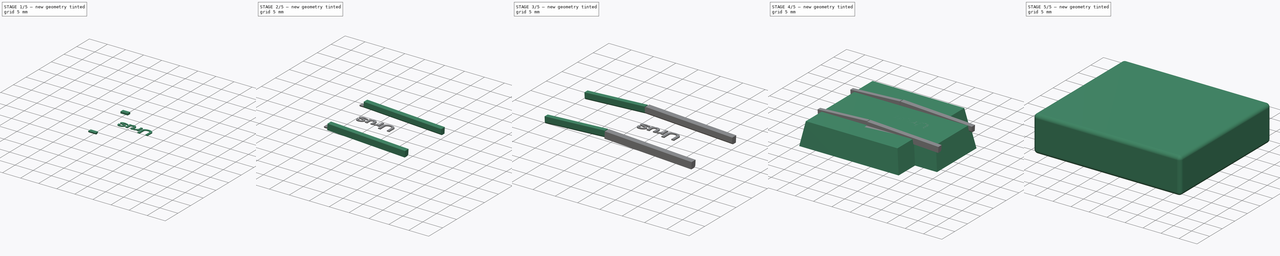
[diagram: build sequence overview — one tinted view per stage of 5, left to right]
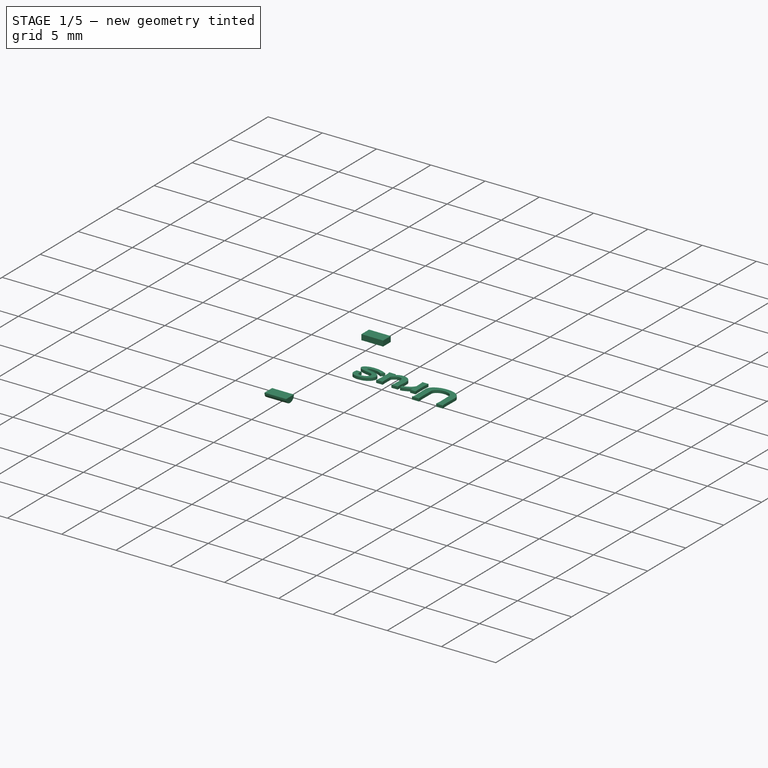
[diagram: stage 1 of 5 — iso view after this stage's code; geometry added in this stage tinted green]
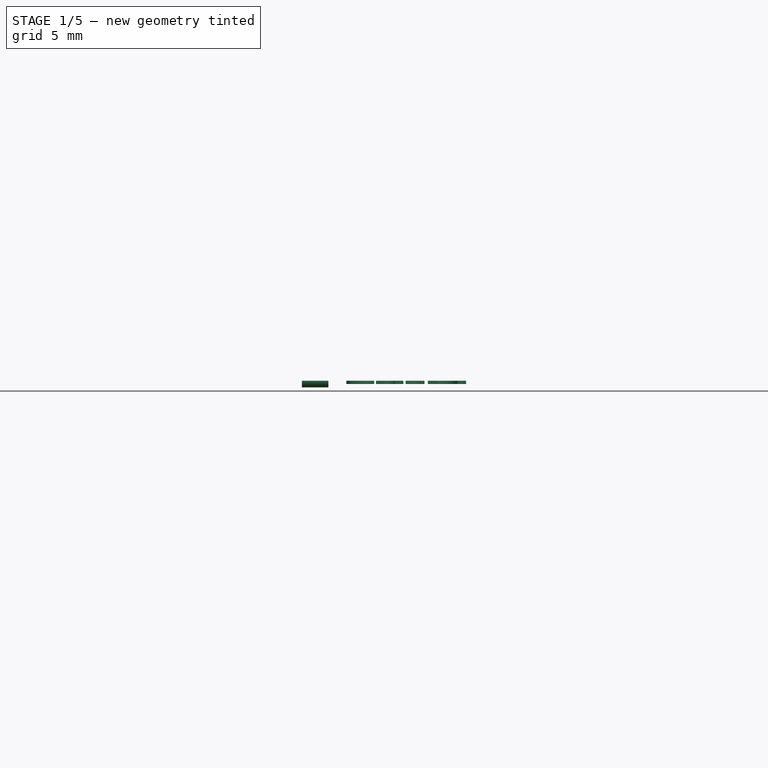
[diagram: stage 1 of 5 — front view after this stage's code; geometry added in this stage tinted green]
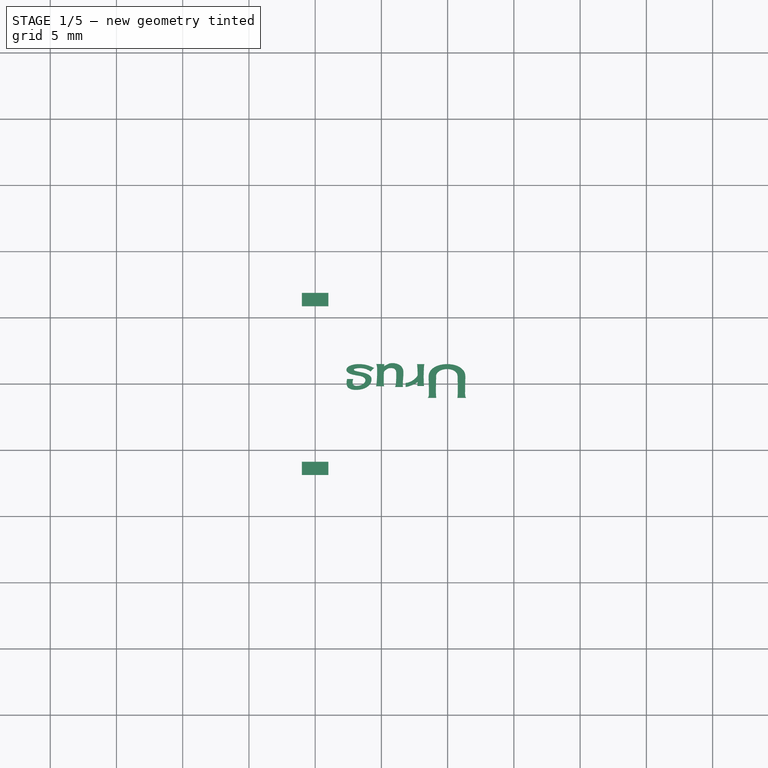
[diagram: stage 1 of 5 — top view after this stage's code; geometry added in this stage tinted green]
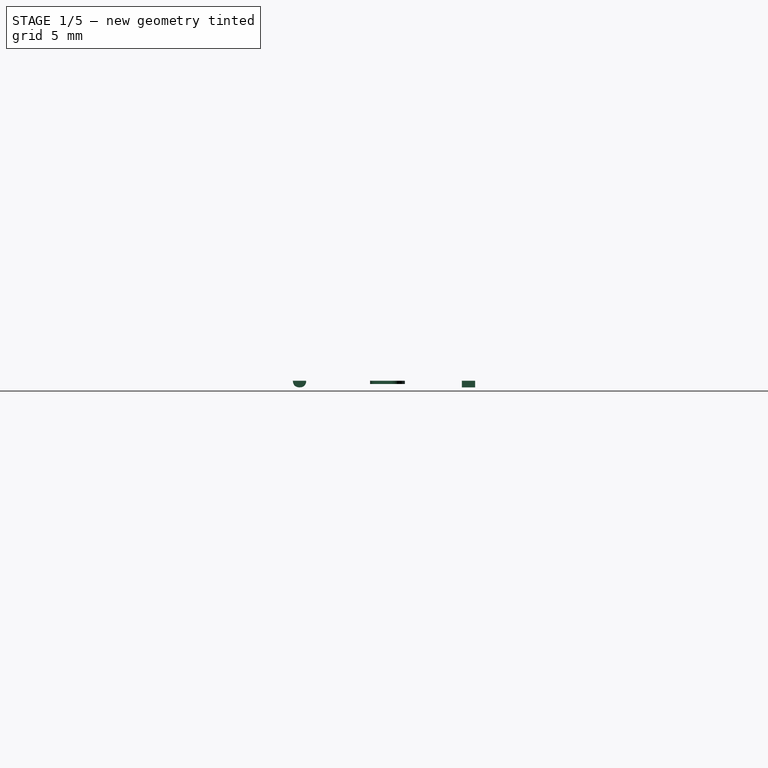
[diagram: stage 1 of 5 — right view after this stage's code; geometry added in this stage tinted green]
FCSTD DOCUMENT  (FreeCAD 0.19R24276 (Git))
Label: Mold_negative5
License: All rights reserved
LicenseURL: http://en.wikipedia.org/wiki/All_rights_reserved
objects: Part::Box×7, Part::Fillet×7, Part::Extrusion×4, Sketcher::SketchObject×3, Part::MultiFuse×2, Part::Cut×2, Spreadsheet::Sheet×1, Part::Part2DObjectPython×1
note: 26 computed .brp shape members not serialized (recipe doc carries the construction recipe); baked Part::Feature solids carry a one-line shape summary decoded from their .brp

FEATURE [Part::Box] Box005  label="Cube005"
  AttacherType = Attacher::AttachEngine3D
  Height = 0.5
  Length = 2
  Placement = pos=(-1,-6.875,-0.5) rot=(0,0.707107,0.707107;0rad)
  Width = 1
  expr: .Placement.Base.y = -<<data>>.left_width / 2 - 0.25mm
FEATURE [Part::Box] Box006  label="Cube006"
  AttacherType = Attacher::AttachEngine3D
  Height = 0.5
  Length = 2
  Placement = pos=(-1,5.875,-0.5) rot=(0,0,1;0rad)
  Width = 1
  expr: .Placement.Base.y = <<data>>.left_width / 2 - 0.75mm
FEATURE [Part::Fillet] Fillet009
  Base = -> Box005
  Edges = 2 edges r=0.45: [Edge9,Edge11]
FEATURE [Part::Part2DObjectPython] ShapeString  # Draft 2D object (typed FeaturePython)
  AttacherType1 = Attacher::AttachEnginePlane
  FontFile = <userpath>/Documents/git/KiCad/FreeCad/CherryCreamSoda-Regular.ttf
  MapMode = 5
  MapMode1 = -1
  MapPathParameter1 = -3
  MapReversed1 = false
  Placement = pos=(0,0,0) rot=(0,0,1;3.14159rad)
  Size = 1.5
  String = Urus
  Tracking = 0
FEATURE [Part::Extrusion] Extrude005
  Base = -> ShapeString
  Dir = (0,0,-0.25)
  DirMode = 0
  FaceMakerClass = Part::FaceMakerExtrusion
  LengthFwd = 0
  LengthRev = 0
  Placement = pos=(11.5,1.5,0) rot=(0,0,-1;0rad)
  Solid = false
  Symmetric = false
  expr: .Placement.Base.x = <<data>>.length / 2 - 1mm
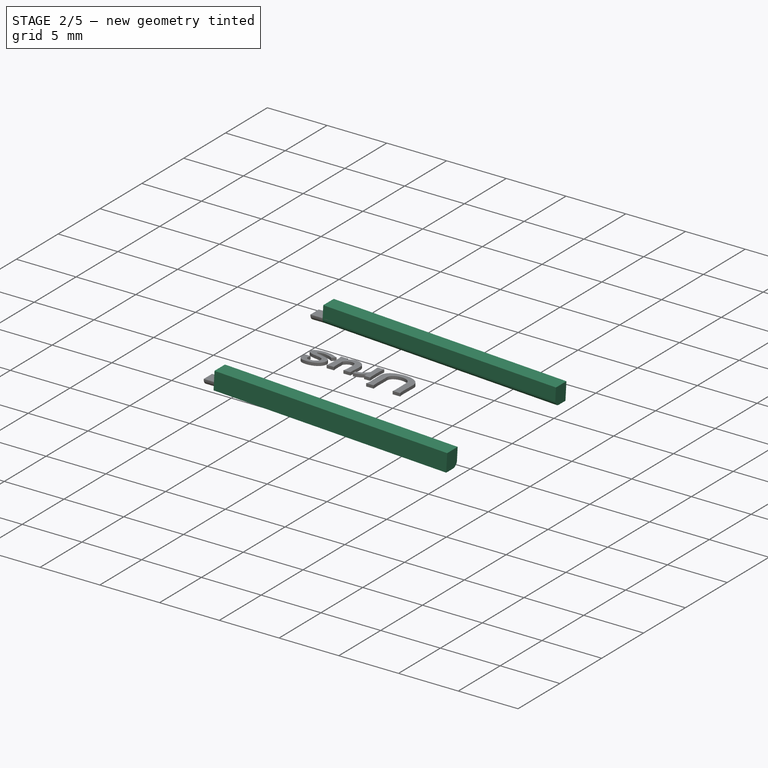
[diagram: stage 2 of 5 — iso view after this stage's code; geometry added in this stage tinted green]
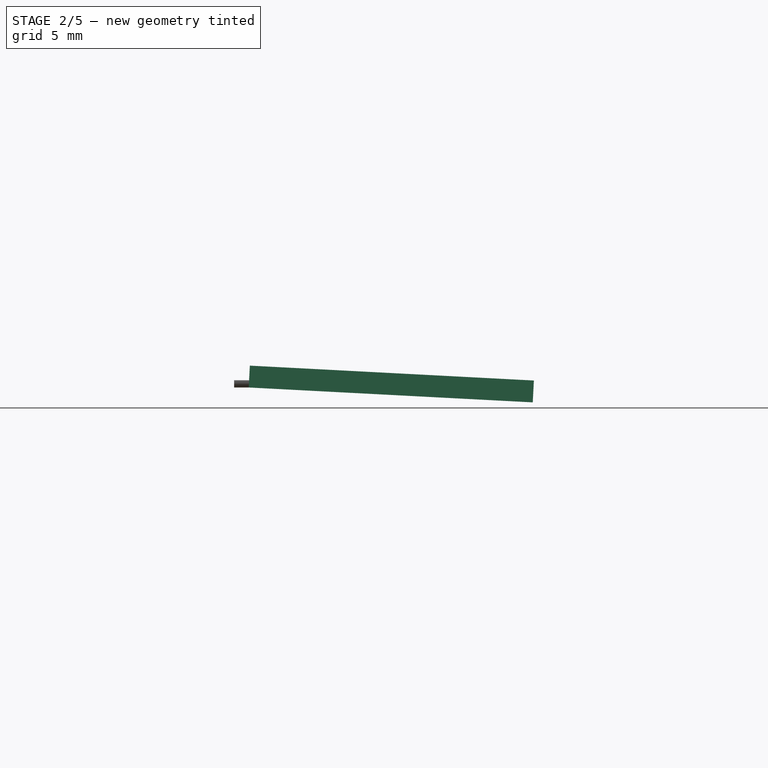
[diagram: stage 2 of 5 — front view after this stage's code; geometry added in this stage tinted green]
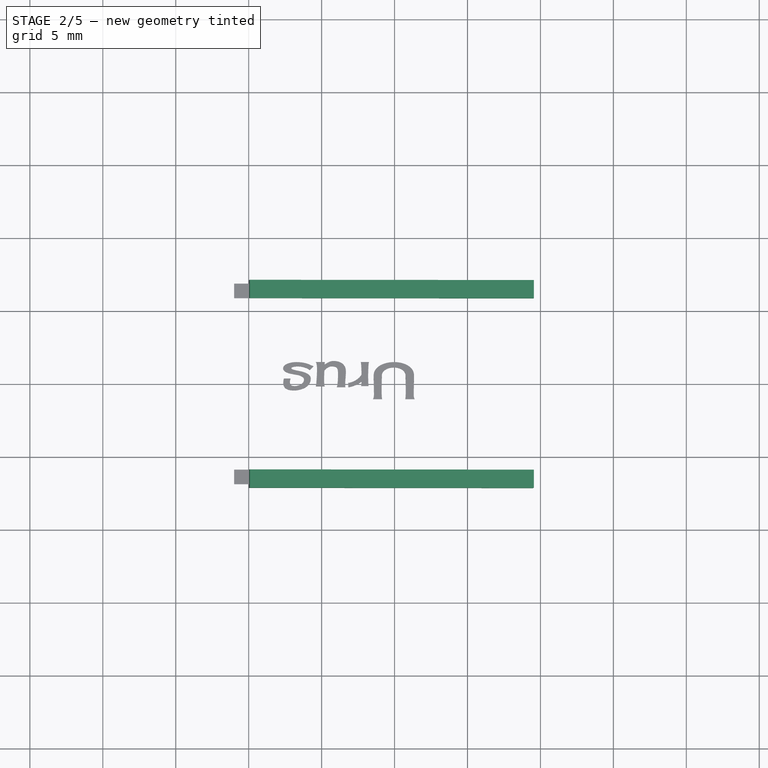
[diagram: stage 2 of 5 — top view after this stage's code; geometry added in this stage tinted green]
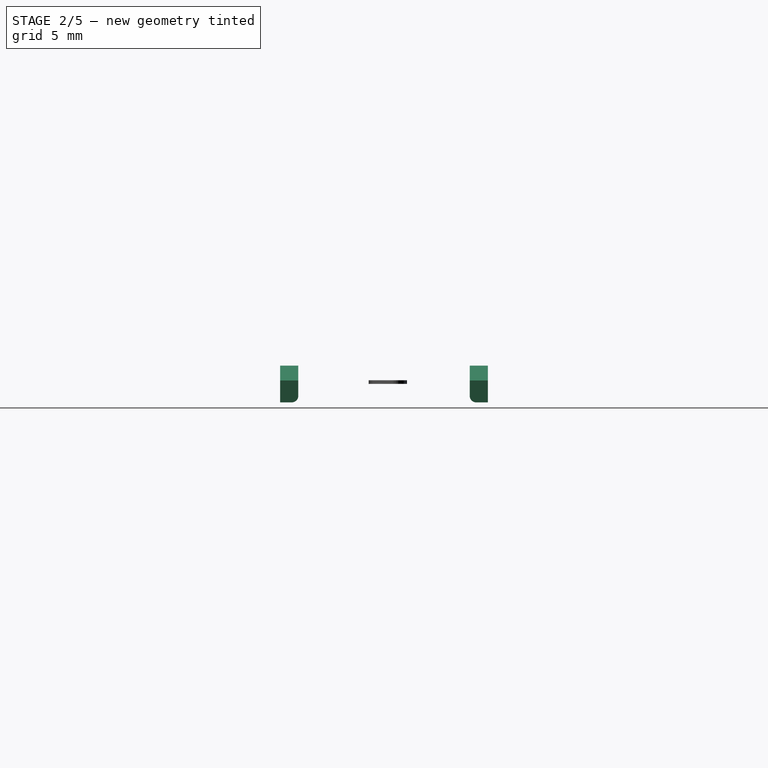
[diagram: stage 2 of 5 — right view after this stage's code; geometry added in this stage tinted green]
FEATURE [Part::Box] Box001  label="L_L"
  AttacherType = Attacher::AttachEngine3D
  Height = 1.5
  Length = 19.5
  Placement = pos=(0,5.875,-0.5) rot=(0,1,0;0.05236rad)
  Width = 1.25
  expr: Length = <<data>>.length / 2 + <<data>>.left_length + 1mm
  expr: .Placement.Base.y = <<data>>.left_width / 2 - 0.75mm
  expr: Height = <<data>>.channel_depth
FEATURE [Part::Box] Box002  label="L_U"
  AttacherType = Attacher::AttachEngine3D
  Height = 1.5
  Length = 19.5
  Placement = pos=(0,-7.125,-0.5) rot=(0,1,0;0.05236rad)
  Width = 1.25
  expr: Length = <<data>>.length / 2 + <<data>>.left_length + 1mm
  expr: .Placement.Base.y = -<<data>>.left_width / 2 - 0.5mm
  expr: Height = <<data>>.channel_depth
FEATURE [Part::Fillet] Fillet006
  Base = -> Box001
  Edges = 1 edges r=0.45: [Edge9]
FEATURE [Part::Fillet] Fillet007
  Base = -> Box002
  Edges = 1 edges r=0.45: [Edge11]
FEATURE [Part::Fillet] Fillet008
  Base = -> Box006
  Edges = 2 edges r=0.45: [Edge9,Edge11]
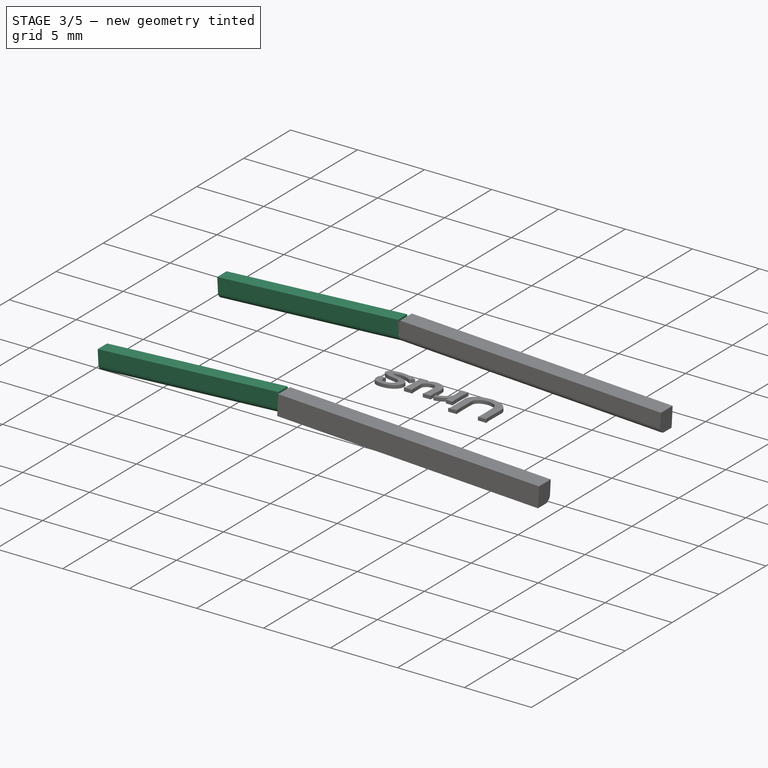
[diagram: stage 3 of 5 — iso view after this stage's code; geometry added in this stage tinted green]
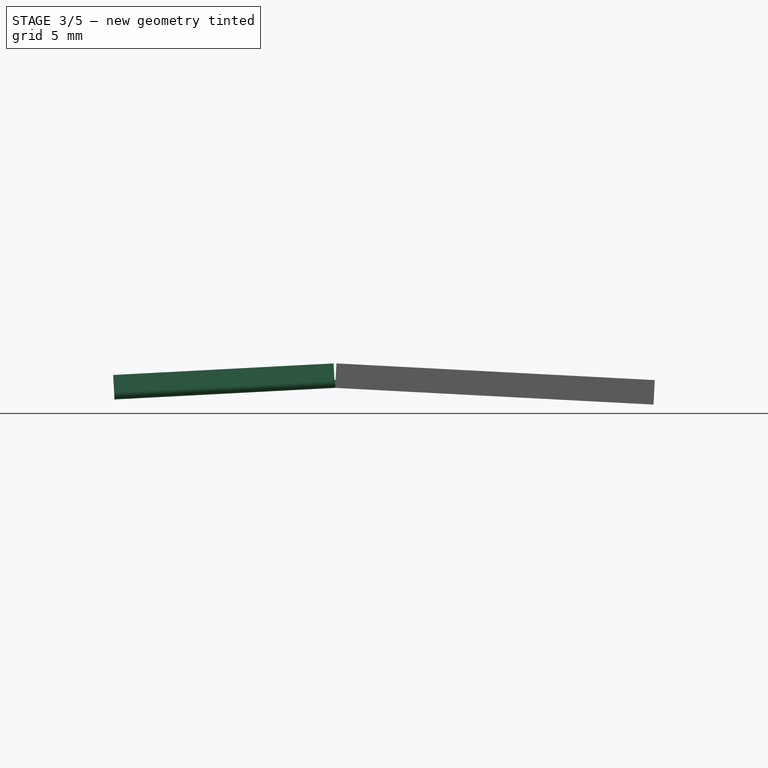
[diagram: stage 3 of 5 — front view after this stage's code; geometry added in this stage tinted green]
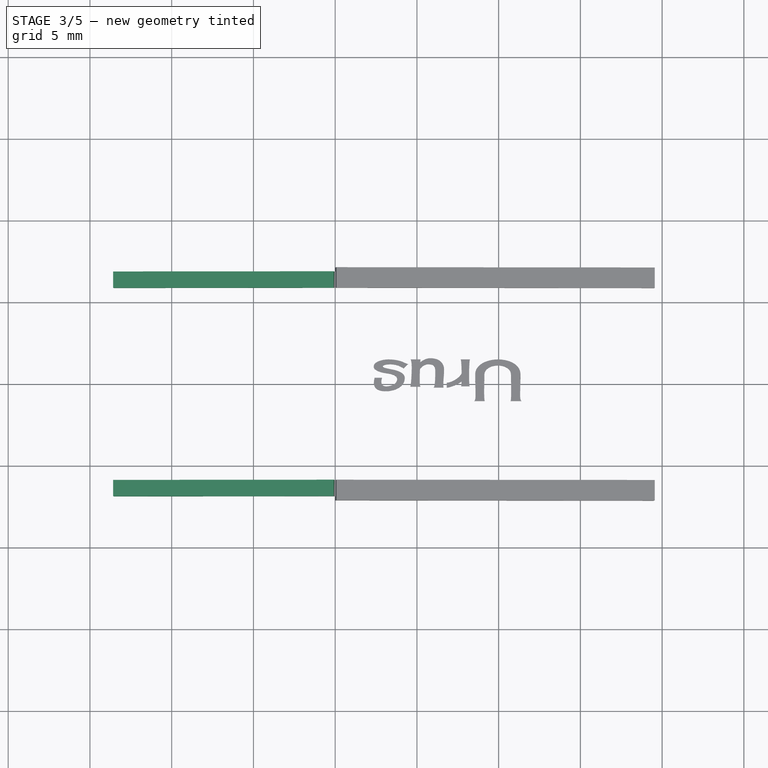
[diagram: stage 3 of 5 — top view after this stage's code; geometry added in this stage tinted green]
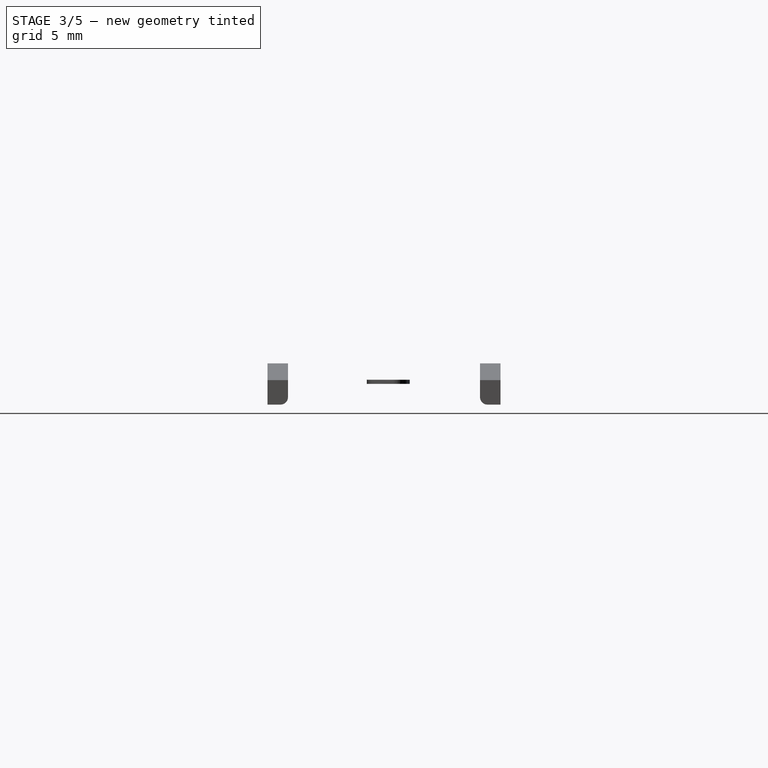
[diagram: stage 3 of 5 — right view after this stage's code; geometry added in this stage tinted green]
FEATURE [Part::Box] Box003  label="R_U"
  AttacherType = Attacher::AttachEngine3D
  Height = 1.5
  Length = 13.5
  Placement = pos=(-13.5,-6.875,-1.20654) rot=(0,-1,0;0.05236rad)
  Width = 1
  expr: .Placement.Base.z = -(<<data>>.length / 2 + <<data>>.right_length + 1mm) * sin(3) - 0.5mm
  expr: Length = <<data>>.length / 2 + <<data>>.right_length + 1mm
  expr: .Placement.Base.y = -<<data>>.left_width / 2 - 0.25mm
  expr: .Placement.Base.x = -<<data>>.length / 2 + <<data>>.right_length - 1mm
  expr: Height = <<data>>.channel_depth
FEATURE [Part::Box] Box004  label="R_L"
  AttacherType = Attacher::AttachEngine3D
  Height = 1.5
  Length = 13.5
  Placement = pos=(-13.5,5.875,-1.20654) rot=(0,-1,0;0.05236rad)
  Width = 1
  expr: .Placement.Base.z = -(<<data>>.length / 2 + <<data>>.right_length + 1mm) * sin(3) - 0.5mm
  expr: Length = <<data>>.length / 2 + <<data>>.right_length + 1mm
  expr: .Placement.Base.y = <<data>>.left_width / 2 - 0.75mm
  expr: .Placement.Base.x = -<<data>>.length / 2 + <<data>>.right_length - 1mm
  expr: Height = <<data>>.channel_depth
FEATURE [Part::Fillet] Fillet004
  Base = -> Box004
  Edges = 2 edges r=0.45: [Edge9,Edge11]
FEATURE [Part::Fillet] Fillet005
  Base = -> Box003
  Edges = 2 edges r=0.45: [Edge9,Edge11]
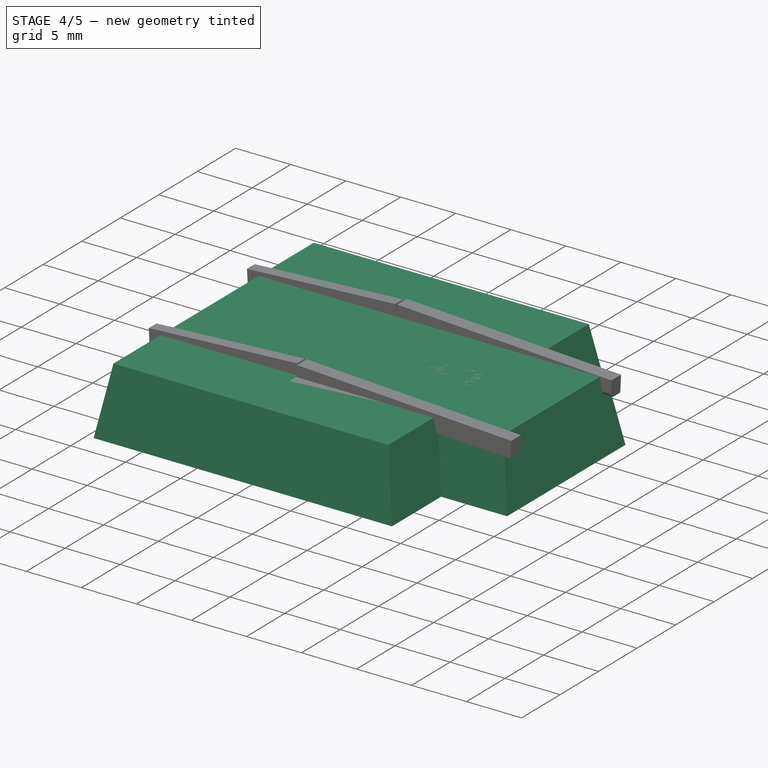
[diagram: stage 4 of 5 — iso view after this stage's code; geometry added in this stage tinted green]
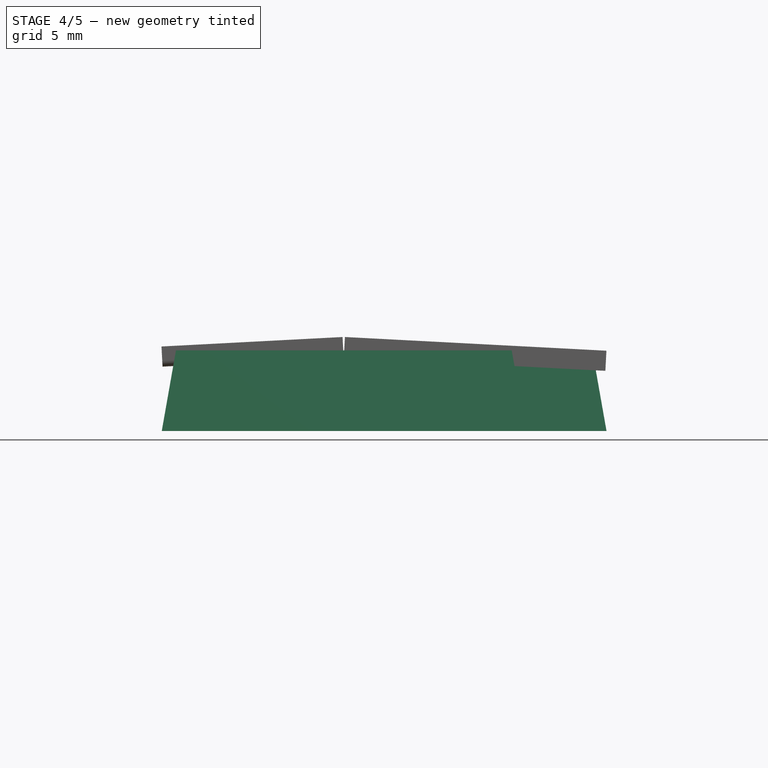
[diagram: stage 4 of 5 — front view after this stage's code; geometry added in this stage tinted green]
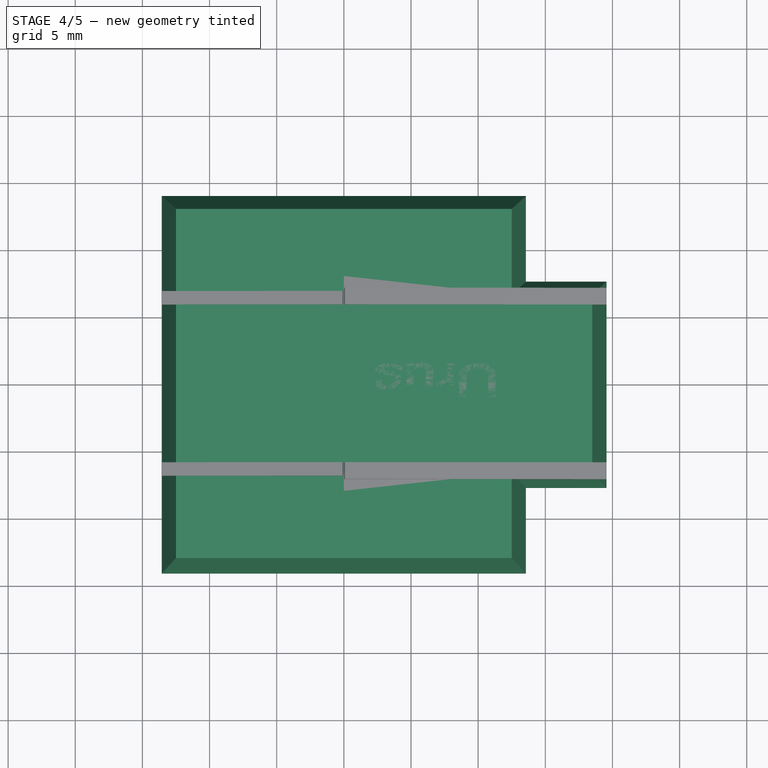
[diagram: stage 4 of 5 — top view after this stage's code; geometry added in this stage tinted green]
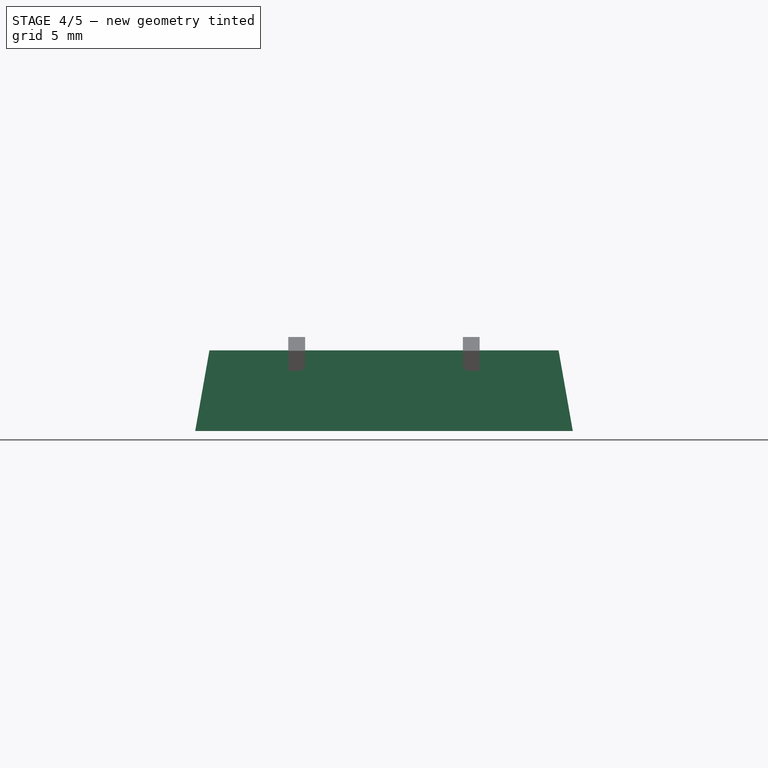
[diagram: stage 4 of 5 — right view after this stage's code; geometry added in this stage tinted green]
FEATURE [Sketcher::SketchObject] Sketch
  FullyConstrained = true
  MapMode = 5
  expr: Constraints[6] = Spreadsheet.length
  expr: Constraints[7] = Spreadsheet.width
  sketch-geometry (4):
    g0: LineSegment StartX=-12.5 StartY=13 StartZ=0 EndX=12.5 EndY=13 EndZ=0
    g1: LineSegment StartX=12.5 StartY=13 StartZ=0 EndX=12.5 EndY=-13 EndZ=0
    g2: LineSegment StartX=12.5 StartY=-13 StartZ=0 EndX=-12.5 EndY=-13 EndZ=0
    g3: LineSegment StartX=-12.5 StartY=-13 StartZ=0 EndX=-12.5 EndY=13 EndZ=0
  constraints (10):
    c: Coincident(g0,g1)
    c: Coincident(g1,g2)
    c: Coincident(g2,g3)
    c: Coincident(g3,g0)
    c: Horizontal(g2)
    c: Vertical(g1)
    c: DistanceX(g0,g0) = 25
    c: DistanceY(g2,g0) = 26
    c: Symmetric(g0,g0,g-2)
    c: Symmetric(g0,g2,g-1)
FEATURE [Part::Extrusion] Extrude  label="MainBody"
  Base = -> Sketch
  Dir = (0,0,-6)
  DirMode = 0
  FaceMakerClass = Part::FaceMakerExtrusion
  LengthFwd = 0
  LengthRev = 0
  Solid = true
  Symmetric = false
  TaperAngle = 10
  expr: .Dir.z = -Spreadsheet.height
  expr: TaperAngle = Spreadsheet.taper
FEATURE [Sketcher::SketchObject] Sketch001
  FullyConstrained = true
  MapMode = 5
  expr: Constraints[7] = Spreadsheet.right_width
  expr: Constraints[10] = Spreadsheet.right_length + Spreadsheet.length / 2
  sketch-geometry (4):
    g0: LineSegment StartX=-12.5 StartY=8 StartZ=0 EndX=0 EndY=8 EndZ=0
    g1: LineSegment StartX=0 StartY=8 StartZ=0 EndX=0 EndY=-8 EndZ=0
    g2: LineSegment StartX=0 StartY=-8 StartZ=0 EndX=-12.5 EndY=-8 EndZ=0
    g3: LineSegment StartX=-12.5 StartY=-8 StartZ=0 EndX=-12.5 EndY=8 EndZ=0
  constraints (11):
    c: Coincident(g0,g1)
    c: Coincident(g1,g2)
    c: Coincident(g2,g3)
    c: Coincident(g3,g0)
    c: Horizontal(g0)
    c: Horizontal(g2)
    c: Vertical(g1)
    c: DistanceY(g2,g0) = 16
    c: Symmetric(g2,g0,g-1)
    c: DistanceX(g0,g-1) = 0
    c: DistanceX(g2,g1) = 12.5
FEATURE [Part::Extrusion] Extrude001  label="RightExtension"
  Base = -> Sketch001
  Dir = (0,0,-6)
  DirMode = 0
  FaceMakerClass = Part::FaceMakerExtrusion
  LengthFwd = 0
  LengthRev = 0
  Solid = true
  Symmetric = false
  TaperAngle = 10
  expr: .Dir.z = -Spreadsheet.height
  expr: TaperAngle = Spreadsheet.taper
FEATURE [Sketcher::SketchObject] Sketch002
  FullyConstrained = true
  MapMode = 5
  expr: Constraints[9] = Spreadsheet.left_width
  expr: Constraints[10] = Spreadsheet.left_length + Spreadsheet.length / 2
  sketch-geometry (4):
    g0: LineSegment StartX=0 StartY=6.625 StartZ=0 EndX=18.5 EndY=6.625 EndZ=0
    g1: LineSegment StartX=18.5 StartY=6.625 StartZ=0 EndX=18.5 EndY=-6.625 EndZ=0
    g2: LineSegment StartX=18.5 StartY=-6.625 StartZ=0 EndX=0 EndY=-6.625 EndZ=0
    g3: LineSegment StartX=0 StartY=-6.625 StartZ=0 EndX=0 EndY=6.625 EndZ=0
  constraints (11):
    c: Coincident(g0,g1)
    c: Coincident(g1,g2)
    c: Coincident(g2,g3)
    c: Coincident(g3,g0)
    c: Horizontal(g0)
    c: Horizontal(g2)
    c: Vertical(g3)
    c: PointOnObject(g0,g-2)
    c: Symmetric(g0,g1,g-1)
    c: DistanceY(g1,g0) = 13.25
    c: DistanceX(g0,g0) = 18.5
FEATURE [Part::Extrusion] Extrude004  label="LeftExtension"
  Base = -> Sketch002
  Dir = (0,0,-6)
  DirMode = 0
  FaceMakerClass = Part::FaceMakerExtrusion
  LengthFwd = 0
  LengthRev = 0
  Solid = true
  Symmetric = false
  TaperAngle = 10
  expr: .Dir.z = -Spreadsheet.height
  expr: TaperAngle = Spreadsheet.taper
FEATURE [Part::MultiFuse] Fusion  label="MainBody001"
  Shapes = -> [Extrude004,Extrude001,Extrude]
FEATURE [Part::MultiFuse] Fusion001  label="RailsAndText"
  Shapes = -> [Extrude005,Fillet009,Fillet008,Fillet007,Fillet006,Fillet005,Fillet004]
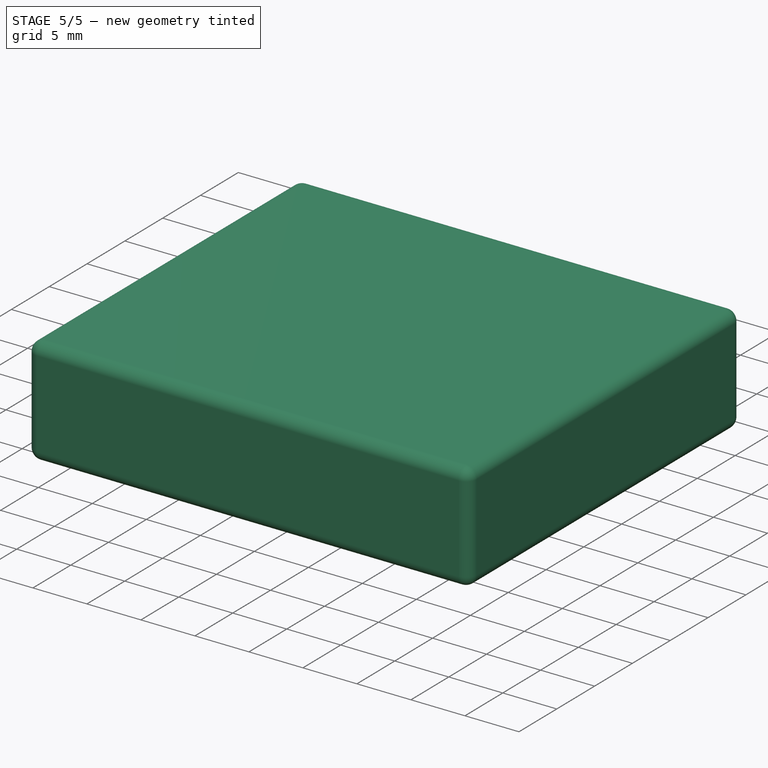
[diagram: stage 5 of 5 — iso view after this stage's code; geometry added in this stage tinted green]
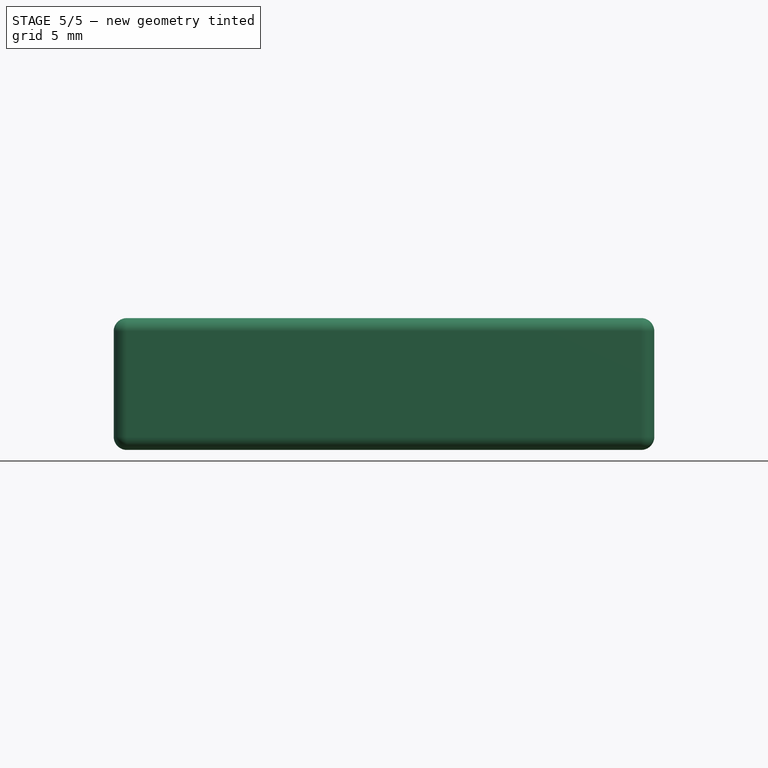
[diagram: stage 5 of 5 — front view after this stage's code; geometry added in this stage tinted green]
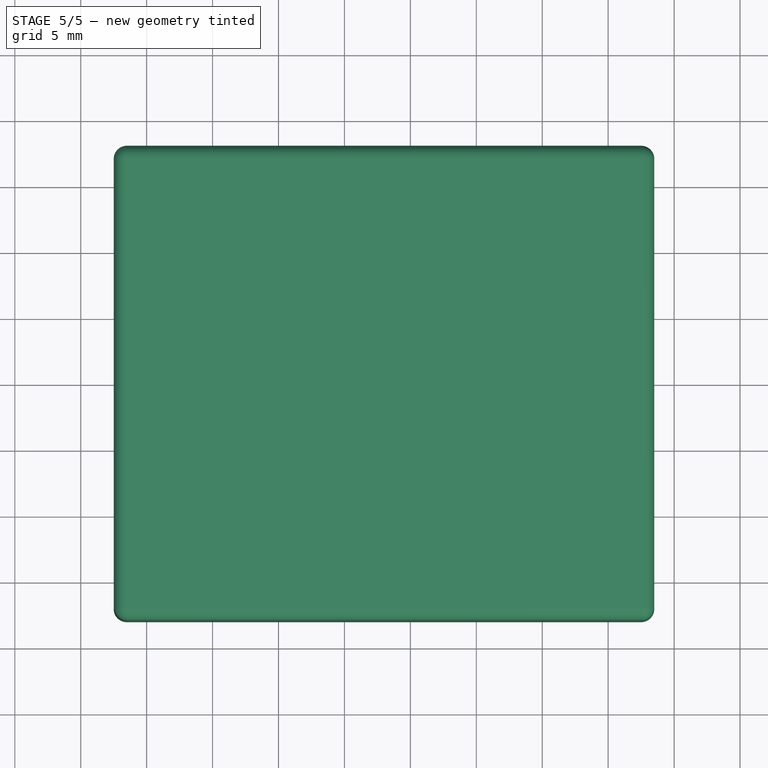
[diagram: stage 5 of 5 — top view after this stage's code; geometry added in this stage tinted green]
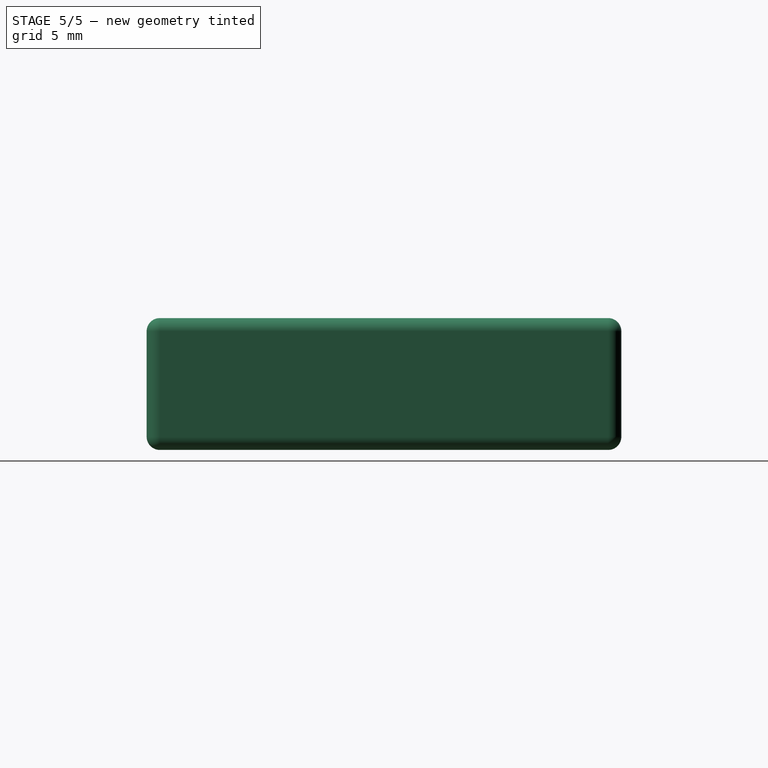
[diagram: stage 5 of 5 — right view after this stage's code; geometry added in this stage tinted green]
FEATURE [Spreadsheet::Sheet] Spreadsheet  label="data"
  cells = A1=taper; B1(taper)=10; H1=10; M1=5; A2=height; B2(height)=6; D2=5; E2=5; G2=6; H2=6; M2=4; A3=length; B3(length)==25mm; D3==27.5mm; E3==29mm; F3==29mm; G3==31mm; H3==25mm; I3==20mm; J3==20mm; K3==20mm; L3==25.5mm; M3==22mm; A4=width; B4(width)==26mm; D4==21.5mm; E4==21mm; F4==21mm; G4==22mm; H4==26mm; I4==22.5mm; J4==22.5mm; K4==20.5mm; L4==21mm; M4==18.5mm; A5=left_length; B5(left_length)==6mm; D5==4mm; E5==4mm; F5==4mm; G5==5mm; H5==6mm; I5==3mm; J5==3mm; K5==5mm; L5==4mm; M5==5mm; A6=left_width; B6(left_width)==13.25mm; D6==14.5mm; E6==13mm; F6==13mm; G6==13.5mm; H6==13.25mm; I6==12.5mm; J6==12.5mm; K6==13mm; L6==11mm; M6==10mm; A7=right_length; B7(right_length)==0mm; D7==4mm; E7==0mm; F7==4mm; G7==5mm; H7==0mm; I7==0mm; J7==0mm; K7==0mm; L7==0mm; A8=right_width; B8(right_width)==16mm; D8==14.5mm; E8==13mm; F8==13mm; G8==13.5mm; A9=hole_offset; B9(hole_offset)==27mm; D9==27mm; E9==27mm; F9==17mm; G9==27mm; A10=wall_thickness; B10(wall_thickness)==5mm; H10==5mm; M10==3mm; A11=base_thickness; B11(base_thickness)=4; H11=4; M11=3; A12=channel_depth; B12(channel_depth)==1.5mm; A13=channel_Z; B13(channel_Z)=1.5; A14=channel_Y; B14(channel_Y)==2mm; D14=<-offset to account for taper and height; A15=name; B15(name)=Urus; D15=Boss 302; E15=Kia wo; F15=Kia w; G15=Grand Cross; H15=Urus; I15=Charger; J15=Impala; K15=84 Audi Quattro; L15=Demon; M15=55 Nomad; H16=4mm = 21g; M18=13g for 4mm
FEATURE [Part::Box] Box  label="Cube"
  AttacherType = Attacher::AttachEngine3D
  Height = 10
  Length = 41
  Placement = pos=(-17.5,-18,0) rot=(0,0,1;0rad)
  Width = 36
  expr: Length = <<data>>.length + <<data>>.left_length + 2 * <<data>>.wall_thickness
  expr: Width = <<data>>.width + 2 * <<data>>.wall_thickness
  expr: Height = <<data>>.height + <<data>>.base_thickness
  expr: .Placement.Base.x = -<<data>>.length / 2 - <<data>>.wall_thickness
  expr: .Placement.Base.y = -<<data>>.width / 2 - <<data>>.wall_thickness
FEATURE [Part::Fillet] Fillet003  label="MoldShape"
  Base = -> Box
  Edges = 12 edges r=1: [Edge1,Edge2,Edge3,Edge4,Edge5,Edge6,Edge7,Edge8,Edge9,Edge10,Edge11,Edge12]
  Placement = pos=(0,0,-6) rot=(0,0,1;0rad)
  expr: .Placement.Base.z = -<<data>>.height
FEATURE [Part::Cut] Cut
  Base = -> Fusion
  Tool = -> Fusion001
FEATURE [Part::Cut] Cut001
  Base = -> Fillet003
  Tool = -> Cut
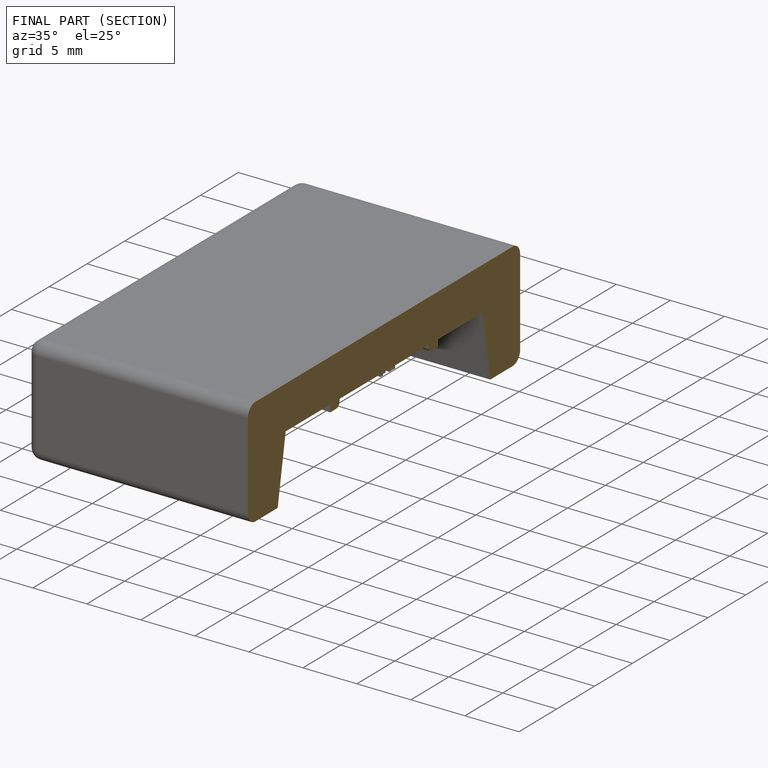
[diagram: finished part — half-section view (interior)]
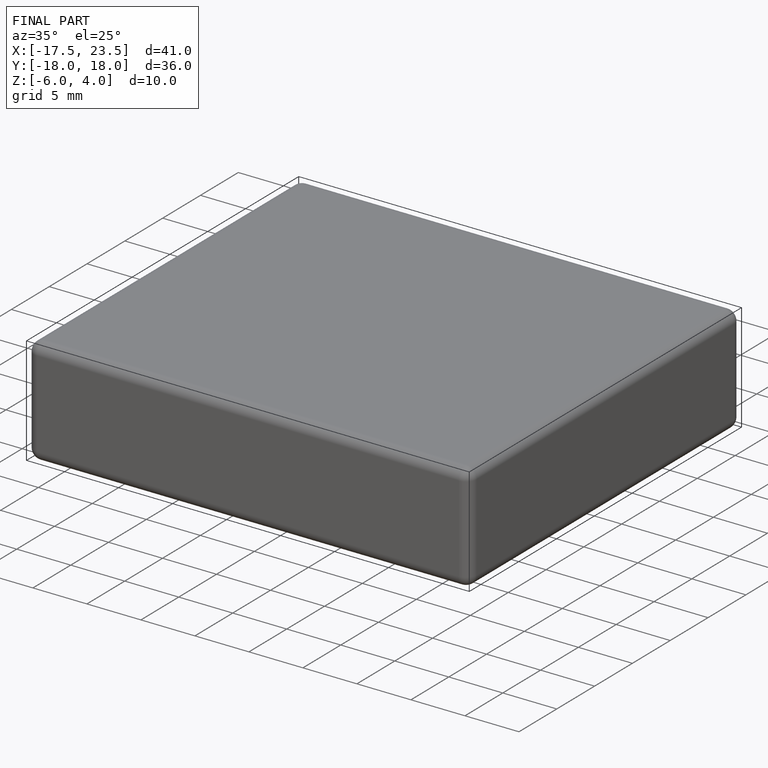
[diagram: finished part — iso view with bounding-box wireframe]
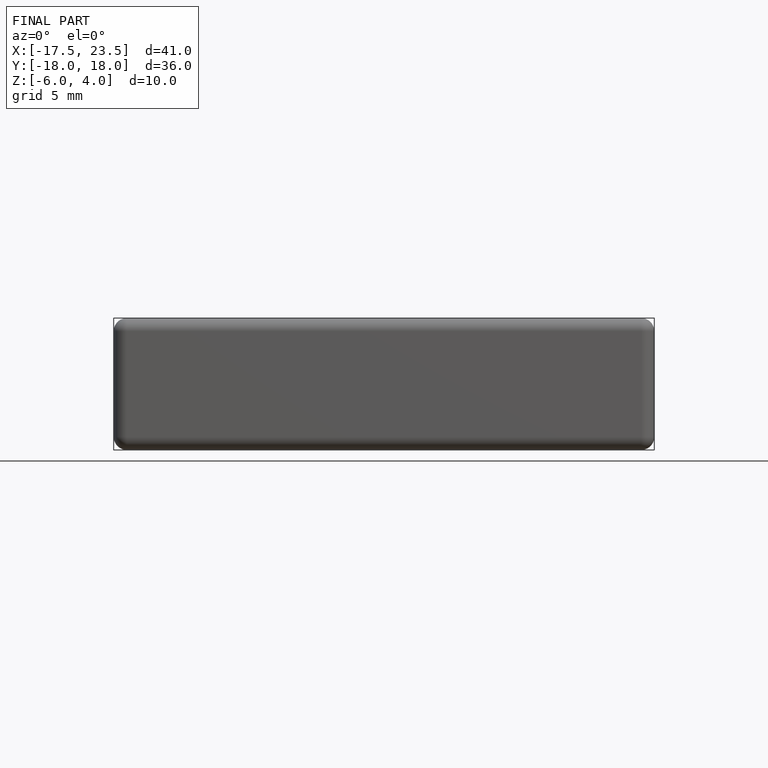
[diagram: finished part — front view with bounding-box wireframe]
